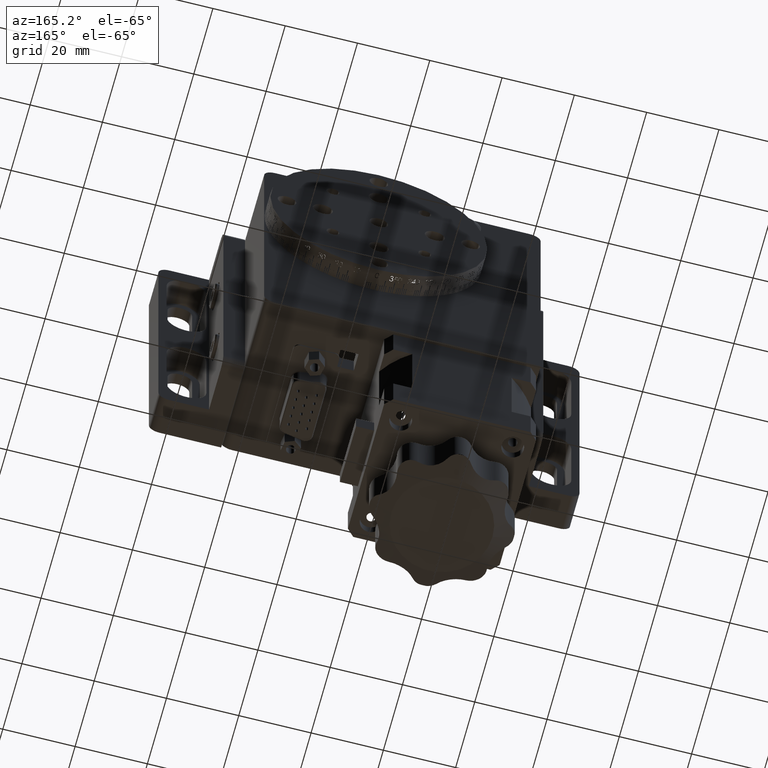
[diagram: clean part render]
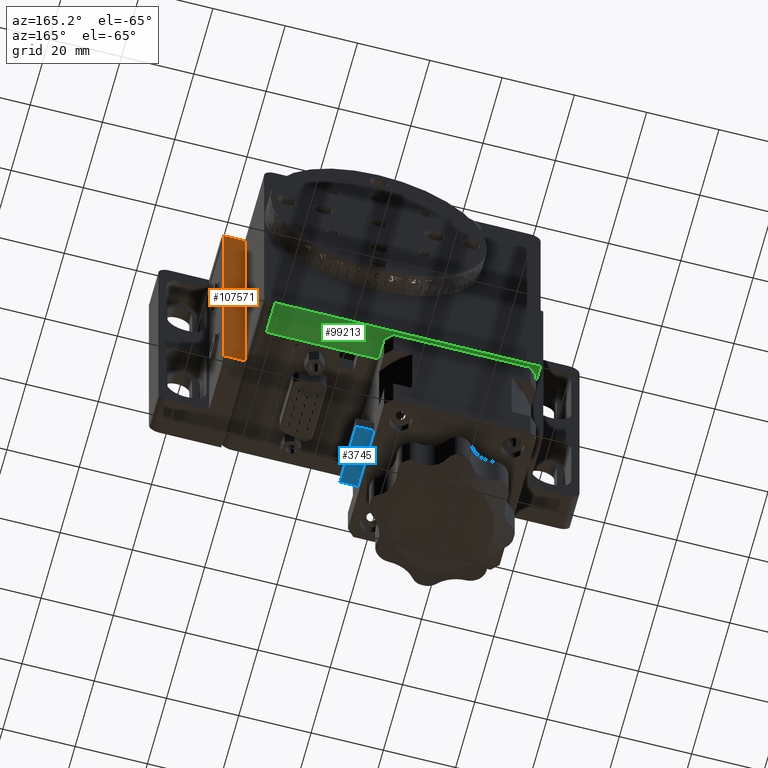
[diagram: same view with three faces highlighted in distinct colors, each labeled with its STEP entity id]
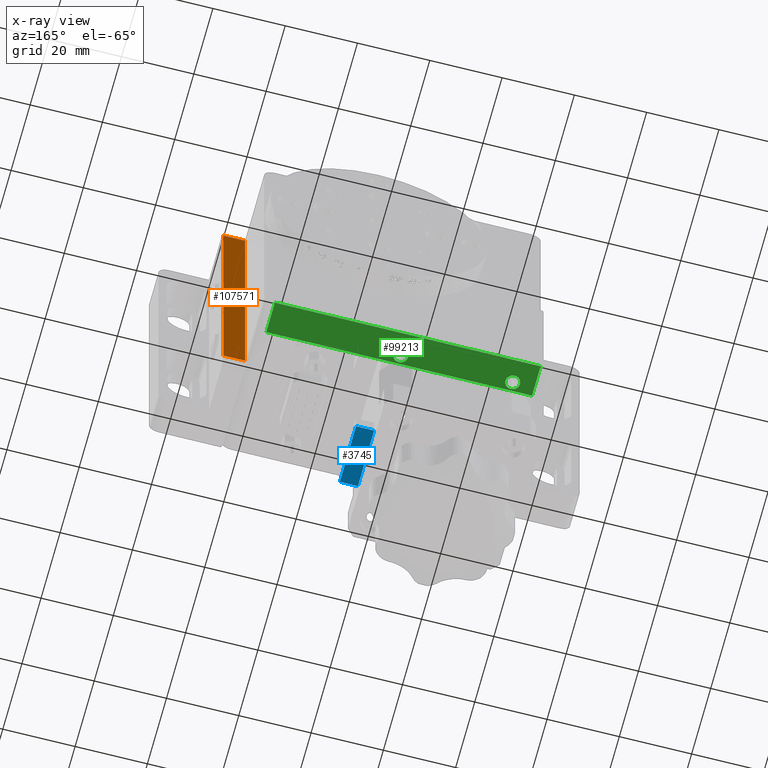
[diagram: x-ray of the same camera — body ghosted, the three highlighted faces saturated]
A machine part, auxiliary view with three faces highlighted in distinct colors.
The next image is the same camera in x-ray (body ghosted, the three faces saturated) — at least one of them is partly hidden behind the body in this view.
Their STEP definitions:

[orange] entity #107571 — the highlighted planar face has unit normal (0, -1, 0).
#2587 = EDGE_CURVE ( 'NONE', #25662, #83798, #29452, .T. ) ;
#24132 = CARTESIAN_POINT ( 'NONE',  ( 76.50000000000009900, -11.00000000000001400, 78.99999999999998600 ) ) ;
#25662 = VERTEX_POINT ( 'NONE', #43155 ) ;
#29452 = LINE ( 'NONE', #77951, #40374 ) ;
#29840 = LINE ( 'NONE', #42866, #50235 ) ;
#31182 = ORIENTED_EDGE ( 'NONE', *, *, #54988, .T. ) ;
#31249 = EDGE_LOOP ( 'NONE', ( #98309, #31182, #82231, #35637 ) ) ;
#33289 = DIRECTION ( 'NONE',  ( -9.069191676465004500E-017, 1.772830048390024800E-017, 1.000000000000000000 ) ) ;
#34711 = CARTESIAN_POINT ( 'NONE',  ( 93.50000000000002800, -11.00000000000000500, 2.999999999999981800 ) ) ;
#35637 = ORIENTED_EDGE ( 'NONE', *, *, #94892, .T. ) ;
#38896 = AXIS2_PLACEMENT_3D ( 'NONE', #34711, #95322, #43438 ) ;
#39004 = VECTOR ( 'NONE', #33289, 1000.000000000000000 ) ;
#40374 = VECTOR ( 'NONE', #78213, 1000.000000000000000 ) ;
#42866 = CARTESIAN_POINT ( 'NONE',  ( 76.50000000000001400, -11.00000000000001400, 2.999999999999995600 ) ) ;
#43062 = VECTOR ( 'NONE', #63050, 1000.000000000000000 ) ;
#43155 = CARTESIAN_POINT ( 'NONE',  ( 76.50000000000001400, -11.00000000000001400, 2.999999999999995600 ) ) ;
#43438 = DIRECTION ( 'NONE',  ( 9.069191676465003300E-017, -1.772830048390024800E-017, -1.000000000000000000 ) ) ;
#47627 = CARTESIAN_POINT ( 'NONE',  ( 82.50000000000000000, -11.00000000000002300, 2.999999999999995600 ) ) ;
#49862 = FACE_OUTER_BOUND ( 'NONE', #31249, .T. ) ;
#50235 = VECTOR ( 'NONE', #112192, 1000.000000000000000 ) ;
#52814 = VERTEX_POINT ( 'NONE', #47627 ) ;
#53489 = CARTESIAN_POINT ( 'NONE',  ( 82.50000000000005700, -11.00000000000002100, 78.99999999999995700 ) ) ;
#54988 = EDGE_CURVE ( 'NONE', #52814, #25662, #29840, .T. ) ;
#63050 = DIRECTION ( 'NONE',  ( 1.000000000000000000, 9.714451465470129600E-017, 4.988621464062530300E-016 ) ) ;
#64756 = EDGE_CURVE ( 'NONE', #52814, #85137, #85088, .T. ) ;
#71795 = CARTESIAN_POINT ( 'NONE',  ( 82.50000000000007100, -11.00000000000002100, 78.99999999999998600 ) ) ;
#76512 = CARTESIAN_POINT ( 'NONE',  ( 82.50000000000000000, -11.00000000000002300, -2.081668171172168500E-014 ) ) ;
#77951 = CARTESIAN_POINT ( 'NONE',  ( 76.50000000000001400, -11.00000000000001400, -6.938893903907228400E-015 ) ) ;
#78213 = DIRECTION ( 'NONE',  ( 8.912698013538453700E-017, 1.772830048390026900E-017, 1.000000000000000000 ) ) ;
#82231 = ORIENTED_EDGE ( 'NONE', *, *, #2587, .T. ) ;
#83798 = VERTEX_POINT ( 'NONE', #24132 ) ;
#85088 = LINE ( 'NONE', #76512, #39004 ) ;
#85137 = VERTEX_POINT ( 'NONE', #53489 ) ;
#94892 = EDGE_CURVE ( 'NONE', #83798, #85137, #112216, .T. ) ;
#95322 = DIRECTION ( 'NONE',  ( 9.714451465470141900E-017, -1.000000000000000000, 1.772830048390025700E-017 ) ) ;
#98309 = ORIENTED_EDGE ( 'NONE', *, *, #64756, .F. ) ;
#103653 = PLANE ( 'NONE',  #38896 ) ;
#107571 = ADVANCED_FACE ( 'NONE', ( #49862 ), #103653, .F. ) ;
#112192 = DIRECTION ( 'NONE',  ( -1.000000000000000000, -9.714451465470121000E-017, 3.174783128769513600E-016 ) ) ;
#112216 = LINE ( 'NONE', #71795, #43062 ) ;

[blue] entity #3745 — the highlighted planar face has unit normal (-0, 0, 1).
#451 = ORIENTED_EDGE ( 'NONE', *, *, #27887, .T. ) ;
#517 = CARTESIAN_POINT ( 'NONE',  ( 47.50000000000005700, -21.49999999999972600, -35.99999999999997900 ) ) ;
#878 = LINE ( 'NONE', #36020, #21283 ) ;
#2281 = VECTOR ( 'NONE', #95837, 1000.000000000000000 ) ;
#2423 = CARTESIAN_POINT ( 'NONE',  ( 47.50000000000005700, -4.499999999999698900, -35.99999999999998600 ) ) ;
#3745 = ADVANCED_FACE ( 'NONE', ( #8376 ), #65311, .F. ) ;
#5014 = DIRECTION ( 'NONE',  ( -3.145242188972302000E-016, 8.799151441027328600E-017, 1.000000000000000000 ) ) ;
#8376 = FACE_OUTER_BOUND ( 'NONE', #97279, .T. ) ;
#9149 = DIRECTION ( 'NONE',  ( -1.000000000000000000, 8.087115633244263000E-017, -3.145242188972302000E-016 ) ) ;
#16082 = ORIENTED_EDGE ( 'NONE', *, *, #105835, .F. ) ;
#17808 = VERTEX_POINT ( 'NONE', #517 ) ;
#21283 = VECTOR ( 'NONE', #44733, 1000.000000000000000 ) ;
#22001 = CARTESIAN_POINT ( 'NONE',  ( 42.50000000000002100, -21.49999999999972600, -35.99999999999998600 ) ) ;
#26531 = CARTESIAN_POINT ( 'NONE',  ( 47.50000000000005700, -21.49999999999972600, -35.99999999999997900 ) ) ;
#27887 = EDGE_CURVE ( 'NONE', #47713, #94514, #878, .T. ) ;
#28548 = VERTEX_POINT ( 'NONE', #2423 ) ;
#36020 = CARTESIAN_POINT ( 'NONE',  ( 42.50000000000002100, -21.49999999999972600, -35.99999999999998600 ) ) ;
#43335 = ORIENTED_EDGE ( 'NONE', *, *, #91142, .T. ) ;
#44041 = LINE ( 'NONE', #61122, #90057 ) ;
#44733 = DIRECTION ( 'NONE',  ( 2.023503913448239700E-016, 1.000000000000000000, -8.799151441027297800E-017 ) ) ;
#45119 = CARTESIAN_POINT ( 'NONE',  ( 42.50000000000002800, -4.499999999999702500, -35.99999999999998600 ) ) ;
#47713 = VERTEX_POINT ( 'NONE', #22001 ) ;
#58242 = VECTOR ( 'NONE', #83838, 1000.000000000000000 ) ;
#58858 = CARTESIAN_POINT ( 'NONE',  ( 47.50000000000005700, -21.49999999999972600, -35.99999999999997900 ) ) ;
#61122 = CARTESIAN_POINT ( 'NONE',  ( 47.50000000000005700, -4.499999999999698900, -35.99999999999998600 ) ) ;
#65311 = PLANE ( 'NONE',  #102435 ) ;
#68721 = DIRECTION ( 'NONE',  ( -1.000000000000000000, -1.734723475976718300E-018, -3.145242188972302000E-016 ) ) ;
#75690 = EDGE_CURVE ( 'NONE', #17808, #28548, #86408, .T. ) ;
#81272 = LINE ( 'NONE', #100086, #58242 ) ;
#83838 = DIRECTION ( 'NONE',  ( -1.000000000000000000, 8.087115633244263000E-017, -3.145242188972302000E-016 ) ) ;
#86408 = LINE ( 'NONE', #26531, #2281 ) ;
#90057 = VECTOR ( 'NONE', #9149, 1000.000000000000000 ) ;
#91142 = EDGE_CURVE ( 'NONE', #17808, #47713, #81272, .T. ) ;
#94514 = VERTEX_POINT ( 'NONE', #45119 ) ;
#95837 = DIRECTION ( 'NONE',  ( 2.023503913448239700E-016, 1.000000000000000000, -8.799151441027297800E-017 ) ) ;
#97279 = EDGE_LOOP ( 'NONE', ( #451, #16082, #98092, #43335 ) ) ;
#98092 = ORIENTED_EDGE ( 'NONE', *, *, #75690, .F. ) ;
#100086 = CARTESIAN_POINT ( 'NONE',  ( 47.50000000000005700, -21.49999999999972600, -35.99999999999997900 ) ) ;
#102435 = AXIS2_PLACEMENT_3D ( 'NONE', #58858, #5014, #68721 ) ;
#105835 = EDGE_CURVE ( 'NONE', #28548, #94514, #44041, .T. ) ;

[green] entity #99213 — the highlighted planar face has unit normal (0, 0, 1).
#5 = ORIENTED_EDGE ( 'NONE', *, *, #79960, .T. ) ;
#432 = AXIS2_PLACEMENT_3D ( 'NONE', #42037, #102587, #50760 ) ;
#970 = AXIS2_PLACEMENT_3D ( 'NONE', #35103, #95697, #43804 ) ;
#1980 = CARTESIAN_POINT ( 'NONE',  ( 73.50000000000008500, -2.126942187971741800E-015, -1.734723475976807100E-013 ) ) ;
#3094 = VECTOR ( 'NONE', #89624, 1000.000000000000000 ) ;
#5540 = EDGE_CURVE ( 'NONE', #35218, #67025, #29585, .T. ) ;
#5922 = EDGE_LOOP ( 'NONE', ( #13548, #32468, #72391, #5 ) ) ;
#5946 = CARTESIAN_POINT ( 'NONE',  ( 5.999999999999928900, 4.499999999999979600, -1.250265478632736100E-013 ) ) ;
#7222 = VECTOR ( 'NONE', #66972, 1000.000000000000000 ) ;
#8635 = ORIENTED_EDGE ( 'NONE', *, *, #109456, .F. ) ;
#9102 = EDGE_CURVE ( 'NONE', #43683, #67404, #30266, .T. ) ;
#9482 = DIRECTION ( 'NONE',  ( -1.000000000000000000, -4.299834179850379900E-017, 1.055467127152148200E-016 ) ) ;
#11460 = EDGE_CURVE ( 'NONE', #14494, #85761, #47059, .T. ) ;
#12227 = DIRECTION ( 'NONE',  ( 8.326672684688674100E-017, -6.322879647175649300E-017, -1.000000000000000000 ) ) ;
#13548 = ORIENTED_EDGE ( 'NONE', *, *, #9102, .T. ) ;
#14494 = VERTEX_POINT ( 'NONE', #75561 ) ;
#16028 = AXIS2_PLACEMENT_3D ( 'NONE', #70730, #12227, #104765 ) ;
#16542 = CARTESIAN_POINT ( 'NONE',  ( -6.245004513516505500E-014, 8.999999999999994700, -1.665334536937734800E-013 ) ) ;
#20130 = FACE_OUTER_BOUND ( 'NONE', #5922, .T. ) ;
#26243 = LINE ( 'NONE', #62800, #3094 ) ;
#29585 = CIRCLE ( 'NONE', #16028, 1.999999999999989600 ) ;
#30266 = LINE ( 'NONE', #58234, #7222 ) ;
#31703 = AXIS2_PLACEMENT_3D ( 'NONE', #87278, #35407, #96004 ) ;
#32468 = ORIENTED_EDGE ( 'NONE', *, *, #44908, .F. ) ;
#35103 = CARTESIAN_POINT ( 'NONE',  ( 5.999999999999928900, 2.499999999999992500, -1.249000902703301100E-013 ) ) ;
#35218 = VERTEX_POINT ( 'NONE', #71001 ) ;
#35407 = DIRECTION ( 'NONE',  ( 8.326672684688674100E-017, -6.322879647175649300E-017, -1.000000000000000000 ) ) ;
#38596 = EDGE_CURVE ( 'NONE', #67025, #35218, #56077, .T. ) ;
#38658 = CIRCLE ( 'NONE', #31703, 1.999999999999987600 ) ;
#40508 = FACE_BOUND ( 'NONE', #100977, .T. ) ;
#41271 = CARTESIAN_POINT ( 'NONE',  ( 73.50000000000008500, 8.999999999999998200, -1.734723475976807100E-013 ) ) ;
#42037 = CARTESIAN_POINT ( 'NONE',  ( 36.99999999999996400, 2.499999999999993300, -1.318389841742373400E-013 ) ) ;
#43683 = VERTEX_POINT ( 'NONE', #1980 ) ;
#43804 = DIRECTION ( 'NONE',  ( 0.0000000000000000000, 1.000000000000000000, -6.322879647175241300E-017 ) ) ;
#44908 = EDGE_CURVE ( 'NONE', #85761, #67404, #80880, .T. ) ;
#47059 = LINE ( 'NONE', #61466, #70131 ) ;
#50010 = DIRECTION ( 'NONE',  ( 1.000000000000000000, 4.299834179850379900E-017, -1.055467127152148400E-016 ) ) ;
#50760 = DIRECTION ( 'NONE',  ( 0.0000000000000000000, 1.000000000000000000, -6.322879647175235200E-017 ) ) ;
#54171 = EDGE_CURVE ( 'NONE', #106263, #109457, #101918, .T. ) ;
#56077 = CIRCLE ( 'NONE', #432, 1.999999999999989600 ) ;
#58234 = CARTESIAN_POINT ( 'NONE',  ( 73.50000000000008500, -2.126942187971741800E-015, -1.734723475976807100E-013 ) ) ;
#61466 = CARTESIAN_POINT ( 'NONE',  ( 73.50000000000008500, 8.999999999999998200, -1.734723475976807100E-013 ) ) ;
#62800 = CARTESIAN_POINT ( 'NONE',  ( 73.50000000000008500, 8.999999999999998200, -1.734723475976807100E-013 ) ) ;
#66279 = FACE_BOUND ( 'NONE', #101523, .T. ) ;
#66972 = DIRECTION ( 'NONE',  ( -1.000000000000000000, -4.299834179850379900E-017, 1.055467127152148200E-016 ) ) ;
#67025 = VERTEX_POINT ( 'NONE', #106657 ) ;
#67404 = VERTEX_POINT ( 'NONE', #103911 ) ;
#70131 = VECTOR ( 'NONE', #9482, 1000.000000000000000 ) ;
#70730 = CARTESIAN_POINT ( 'NONE',  ( 36.99999999999996400, 2.499999999999993300, -1.318389841742373400E-013 ) ) ;
#71001 = CARTESIAN_POINT ( 'NONE',  ( 36.99999999999996400, 4.499999999999983100, -1.319654417671808400E-013 ) ) ;
#71929 = ORIENTED_EDGE ( 'NONE', *, *, #54171, .F. ) ;
#72391 = ORIENTED_EDGE ( 'NONE', *, *, #11460, .F. ) ;
#73770 = ORIENTED_EDGE ( 'NONE', *, *, #5540, .F. ) ;
#75561 = CARTESIAN_POINT ( 'NONE',  ( 73.50000000000008500, 8.999999999999998200, -1.734723475976807100E-013 ) ) ;
#78631 = CARTESIAN_POINT ( 'NONE',  ( 5.999999999999928900, 0.5000000000000043300, -1.247736326773866100E-013 ) ) ;
#79960 = EDGE_CURVE ( 'NONE', #14494, #43683, #26243, .T. ) ;
#80880 = LINE ( 'NONE', #16542, #101175 ) ;
#85761 = VERTEX_POINT ( 'NONE', #96414 ) ;
#87278 = CARTESIAN_POINT ( 'NONE',  ( 5.999999999999928900, 2.499999999999992500, -1.249000902703301100E-013 ) ) ;
#88782 = ORIENTED_EDGE ( 'NONE', *, *, #38596, .F. ) ;
#89624 = DIRECTION ( 'NONE',  ( 4.299834179850407700E-017, -1.000000000000000000, 6.322879647175704800E-017 ) ) ;
#94569 = DIRECTION ( 'NONE',  ( 4.299834179850407700E-017, -1.000000000000000000, 6.322879647175704800E-017 ) ) ;
#95697 = DIRECTION ( 'NONE',  ( 8.326672684688674100E-017, -6.322879647175649300E-017, -1.000000000000000000 ) ) ;
#96004 = DIRECTION ( 'NONE',  ( 0.0000000000000000000, 1.000000000000000000, -6.322879647175241300E-017 ) ) ;
#96414 = CARTESIAN_POINT ( 'NONE',  ( -6.245004513516505500E-014, 8.999999999999994700, -1.665334536937734800E-013 ) ) ;
#99213 = ADVANCED_FACE ( 'NONE', ( #66279, #40508, #20130 ), #110195, .F. ) ;
#100977 = EDGE_LOOP ( 'NONE', ( #71929, #8635 ) ) ;
#101175 = VECTOR ( 'NONE', #94569, 1000.000000000000000 ) ;
#101523 = EDGE_LOOP ( 'NONE', ( #73770, #88782 ) ) ;
#101835 = DIRECTION ( 'NONE',  ( 1.055467127152148400E-016, 6.322879647175657900E-017, 1.000000000000000000 ) ) ;
#101918 = CIRCLE ( 'NONE', #970, 1.999999999999987600 ) ;
#102587 = DIRECTION ( 'NONE',  ( 8.326672684688674100E-017, -6.322879647175649300E-017, -1.000000000000000000 ) ) ;
#103911 = CARTESIAN_POINT ( 'NONE',  ( -6.245004513516505500E-014, -5.287320310161778800E-015, -1.665334536937734800E-013 ) ) ;
#104765 = DIRECTION ( 'NONE',  ( 0.0000000000000000000, 1.000000000000000000, -6.322879647175235200E-017 ) ) ;
#106263 = VERTEX_POINT ( 'NONE', #5946 ) ;
#106657 = CARTESIAN_POINT ( 'NONE',  ( 36.99999999999996400, 0.5000000000000038900, -1.317125265812938400E-013 ) ) ;
#109456 = EDGE_CURVE ( 'NONE', #109457, #106263, #38658, .T. ) ;
#109457 = VERTEX_POINT ( 'NONE', #78631 ) ;
#110195 = PLANE ( 'NONE',  #112430 ) ;
#112430 = AXIS2_PLACEMENT_3D ( 'NONE', #41271, #101835, #50010 ) ;